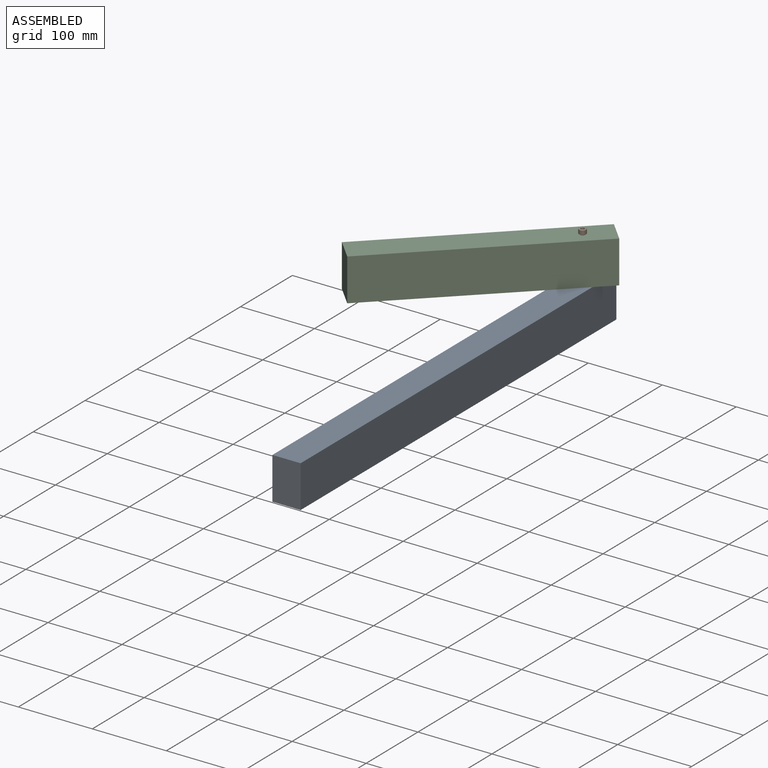
[diagram: assembled view]
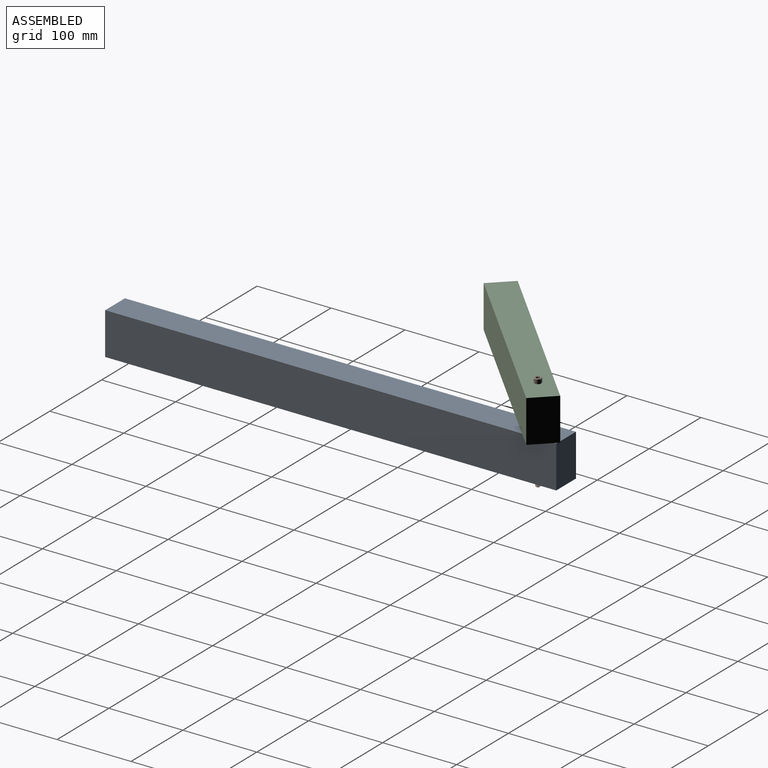
[diagram: assembled view, second angle]
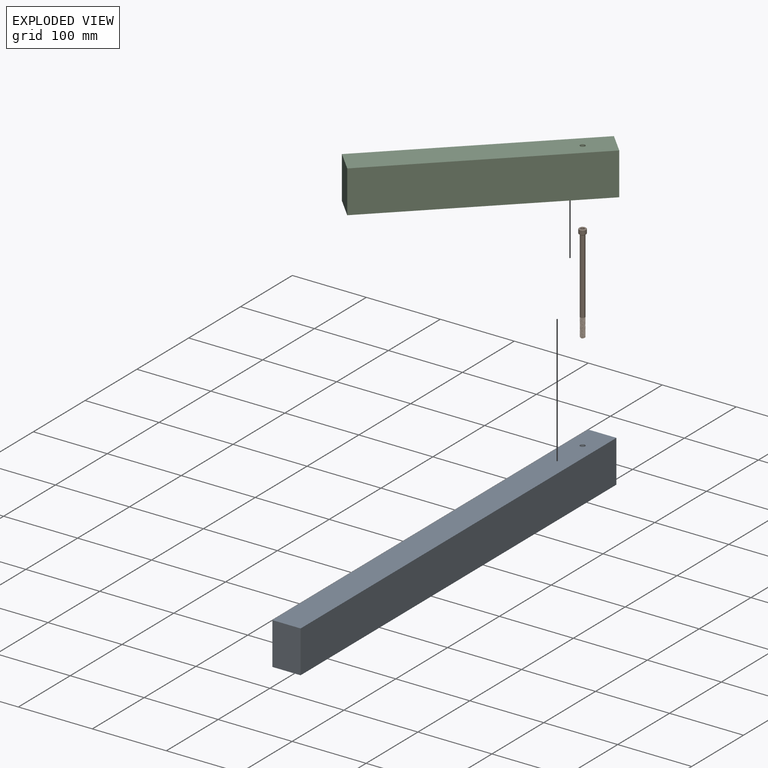
[diagram: exploded view]
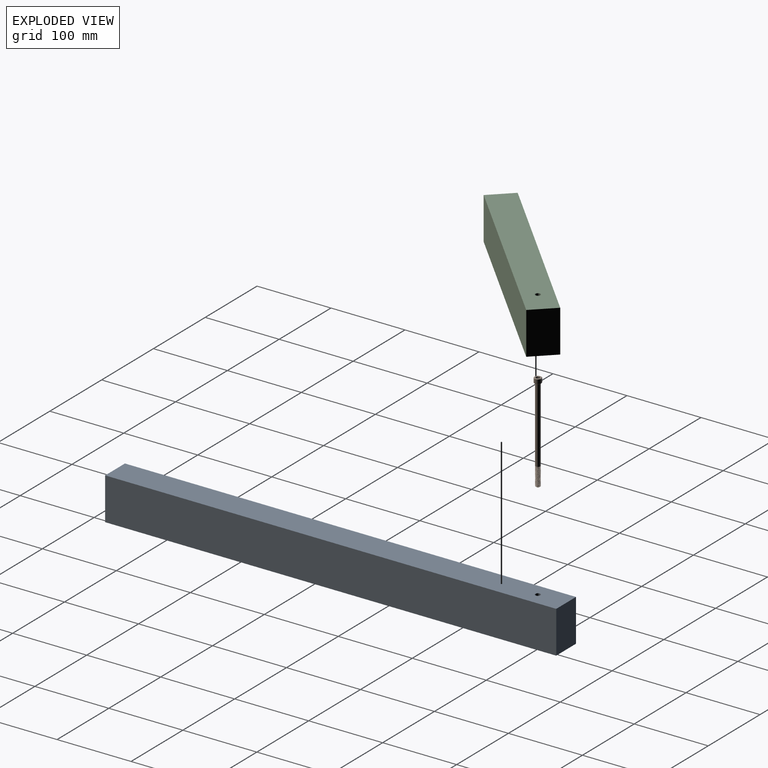
[diagram: exploded view, second angle]
ASSEMBLY  parts=3 mates=3
PART A: 7 faces, bbox 38.1x609.6x57.2 mm
  f0: plane 609.6x38.1mm, normal (0,0,1), area 23190.2mm2, adj f1,f3,f4,f5,f6
  f1: plane 609.6x57.15mm, normal (-1,0,0), area 34838.6mm2, adj f0,f2,f4,f5
  f2: plane 609.6x38.1mm, normal (0,0,-1), area 23190.2mm2, adj f1,f3,f4,f5,f6
  f3: plane 609.6x57.15mm, normal (1,0,0), area 34838.6mm2, adj f0,f2,f4,f5
  f4: plane 57.15x38.1mm, normal (0,1,0), area 2177.4mm2, adj f0,f1,f2,f3
  f5: plane 57.15x38.1mm, normal (0,-1,0), area 2177.4mm2, adj f0,f1,f2,f3
  f6: cylinder r=3.37mm len=57.15mm, axis (0,0,1), area 1208.5mm2, adj f0,f2
PART B: 44 faces, bbox 10.6x10.6x134.9 mm
  f0: cone r=4.76mm half-angle=45deg, axis (0,0,-1), area 19.1mm2, adj f3,f26
  f1: cone r=4.29mm half-angle=45deg, axis (0,0,1), area 19.1mm2, adj f3,f30
  f2: cone r=2.75mm half-angle=45deg, axis (0,0,-1), area 0.7mm2, adj f30,f41
  f3: cylinder r=4.76mm len=9.53mm, axis (0,0,1), area 161.5mm2, adj f0,f1
  f4: cone r=2.1mm half-angle=55deg, axis (0,0,-1), area 12.8mm2, adj f5,f6,f27,f28,f29
  f5: cylinder r=2.35mm len=25.22mm, axis (0,0,-1), area 46.5mm2, adj f4,f27,f28,f43
  f6: cylinder r=3.17mm len=6.35mm, axis (0,0,1), area 2.3mm2, adj f4,f7,f27,f28
  f7: cylinder r=3.17mm len=6.35mm, axis (0,0,1), area 3.2mm2, adj f6,f8,f27,f28
  f8: cylinder r=3.17mm len=6.35mm, axis (0,0,1), area 3.2mm2, adj f7,f9,f27,f28
  f9: cylinder r=3.17mm len=6.35mm, axis (0,0,1), area 3.2mm2, adj f8,f10,f27,f28
  f10: cylinder r=3.17mm len=6.35mm, axis (0,0,1), area 3.2mm2, adj f9,f11,f27,f28
  f11: cylinder r=3.17mm len=6.35mm, axis (0,0,1), area 3.2mm2, adj f10,f12,f27,f28
  f12: cylinder r=3.17mm len=6.35mm, axis (0,0,1), area 3.2mm2, adj f11,f13,f27,f28
  f13: cylinder r=3.17mm len=6.35mm, axis (0,0,1), area 3.2mm2, adj f12,f14,f27,f28
  f14: cylinder r=3.17mm len=6.35mm, axis (0,0,1), area 3.2mm2, adj f13,f15,f27,f28
  f15: cylinder r=3.17mm len=6.35mm, axis (0,0,1), area 3.2mm2, adj f14,f16,f27,f28
  f16: cylinder r=3.17mm len=6.35mm, axis (0,0,1), area 3.2mm2, adj f15,f17,f27,f28
  f17: cylinder r=3.17mm len=6.35mm, axis (0,0,1), area 3.2mm2, adj f16,f18,f27,f28
  f18: cylinder r=3.17mm len=6.35mm, axis (0,0,1), area 3.2mm2, adj f17,f19,f27,f28
  f19: cylinder r=3.17mm len=6.35mm, axis (0,0,1), area 3.2mm2, adj f18,f20,f27,f28
  f20: cylinder r=3.17mm len=6.35mm, axis (0,0,1), area 3.2mm2, adj f19,f21,f27,f28
  f21: cylinder r=3.17mm len=6.35mm, axis (0,0,1), area 3.2mm2, adj f20,f22,f27,f28
  f22: cylinder r=3.17mm len=6.35mm, axis (0,0,1), area 3.2mm2, adj f21,f23,f27,f28
  f23: cylinder r=3.17mm len=6.35mm, axis (0,0,1), area 3.2mm2, adj f22,f24,f27,f28
  f24: cylinder r=3.17mm len=6.35mm, axis (0,0,1), area 3.2mm2, adj f23,f25,f27,f28
  f25: cylinder r=3.17mm len=102.55mm, axis (0,0,1), area 2029mm2, adj f24,f26,f27,f28,f43
  f26: plane 8.57x8.57mm, normal (0,0,1), area 26mm2, adj f0,f25
  f27: bspline ~26.51x7.33mm, area 325.9mm2, adj f4,f5,f6,f7,f8,f9,f10,f11
  f28: bspline ~25.88x7.33mm, area 325.1mm2, adj f4,f5,f6,f7,f8,f9,f10,f11
  f29: plane 4.19x4.19mm, normal (0,0,1), area 13.8mm2, adj f4
  f30: plane 8.57x8.57mm, normal (0,0,-1), area 34mm2, adj f1,f2,f31,f32,f33,f34,f35
  f31: cone r=2.75mm half-angle=45deg, axis (0,0,-1), area 0mm2, adj f30,f37
  f32: cone r=2.75mm half-angle=45deg, axis (0,0,-1), area 0mm2, adj f30,f38
  f33: cone r=2.75mm half-angle=45deg, axis (0,0,-1), area 0mm2, adj f30,f39
  f34: cone r=2.75mm half-angle=45deg, axis (0,0,-1), area 0mm2, adj f30,f40
  f35: cone r=2.75mm half-angle=45deg, axis (0,0,-1), area 0mm2, adj f30,f42
  f36: plane 5.5x4.76mm, normal (0,0,-1), area 19.6mm2, adj f37,f38,f39,f40,f41,f42
  f37: plane 4.61x3.42mm, normal (-0.5,-0.87,0), area 9.1mm2, adj f31,f36,f38,f42
  f38: plane 4.61x3.79mm, normal (-1,0,0), area 9.2mm2, adj f32,f36,f37,f39
  f39: plane 4.61x3.42mm, normal (-0.5,0.87,0), area 9.1mm2, adj f33,f36,f38,f40
  f40: plane 4.61x3.42mm, normal (0.5,0.87,0), area 9.2mm2, adj f34,f36,f39,f41
  f41: plane 3.84x3.02mm, normal (1,0,0), area 9.2mm2, adj f2,f36,f40,f42
  f42: plane 4.61x3.42mm, normal (0.5,-0.87,0), area 9.2mm2, adj f35,f36,f37,f41
  f43: plane 6.85x6.85mm, normal (0,0,1), area 7.4mm2, adj f5,f25,f27,f28
PART C: 7 faces, bbox 38.1x304.8x57.2 mm
  f0: plane 304.8x38.1mm, normal (0,0,1), area 11577.3mm2, adj f1,f2,f4,f5,f6
  f1: plane 304.8x57.15mm, normal (1,0,0), area 17419.3mm2, adj f0,f3,f4,f6
  f2: plane 304.8x57.15mm, normal (-1,0,0), area 17419.3mm2, adj f0,f3,f4,f6
  f3: plane 304.8x38.1mm, normal (0,0,-1), area 11577.3mm2, adj f1,f2,f4,f5,f6
  f4: plane 57.15x38.1mm, normal (0,1,0), area 2177.4mm2, adj f0,f1,f2,f3
  f5: cylinder r=3.37mm len=57.15mm, axis (0,0,1), area 1208.5mm2, adj f0,f3
  f6: plane 57.15x38.1mm, normal (0,-1,0), area 2177.4mm2, adj f0,f1,f2,f3
PLACE A t=(-98.28,-365.67,-164.69)mm fixed
PLACE B rot(axis=(0.92,-0.39,0),180deg) t=(-98.28,-98.97,-205.97)mm
PLACE C rot(axis=(0,0,-1),46.1deg) t=(-378.53,-192.34,-107.54)mm
MATE planar A.f0 <-> C.f3  axis (0,0,1) through (-98.28,-366.08,-136.12)mm
MATE fastened B.f0 <-> C.f5  axis (0,0,-1) through (-98.28,-98.97,-78.97)mm
MATE cylindrical A.f6 <-> C.f5  axis (0,0,1) through (-98.28,-98.97,-136.12)mm
